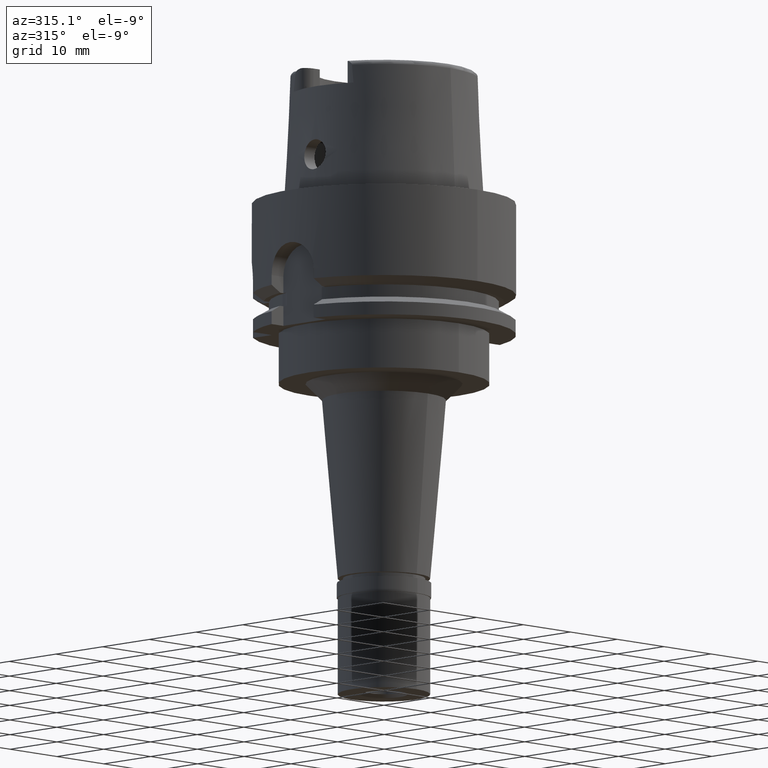
[diagram: clean part render]
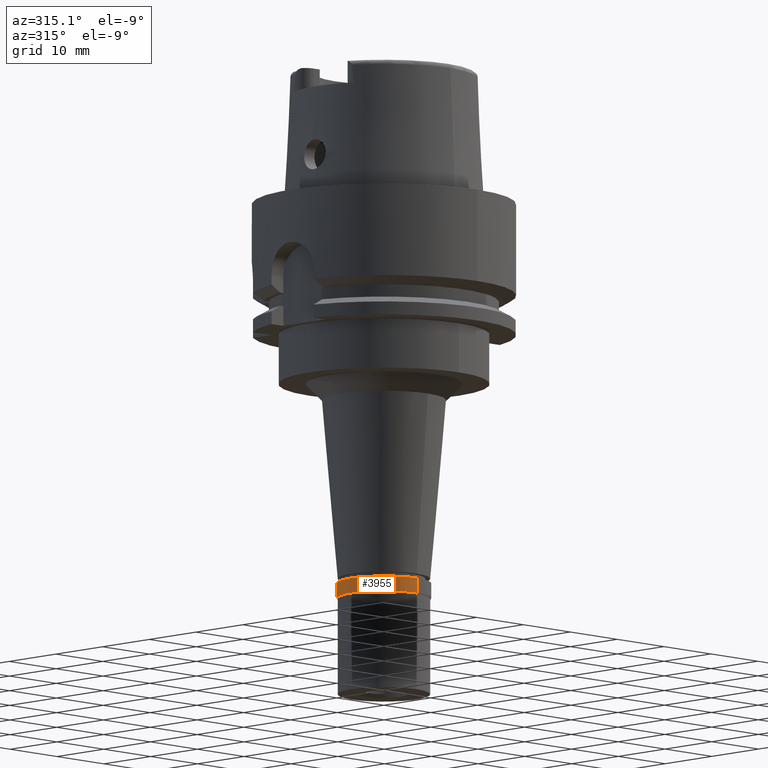
[diagram: same view with one face highlighted and labeled with its STEP entity id]
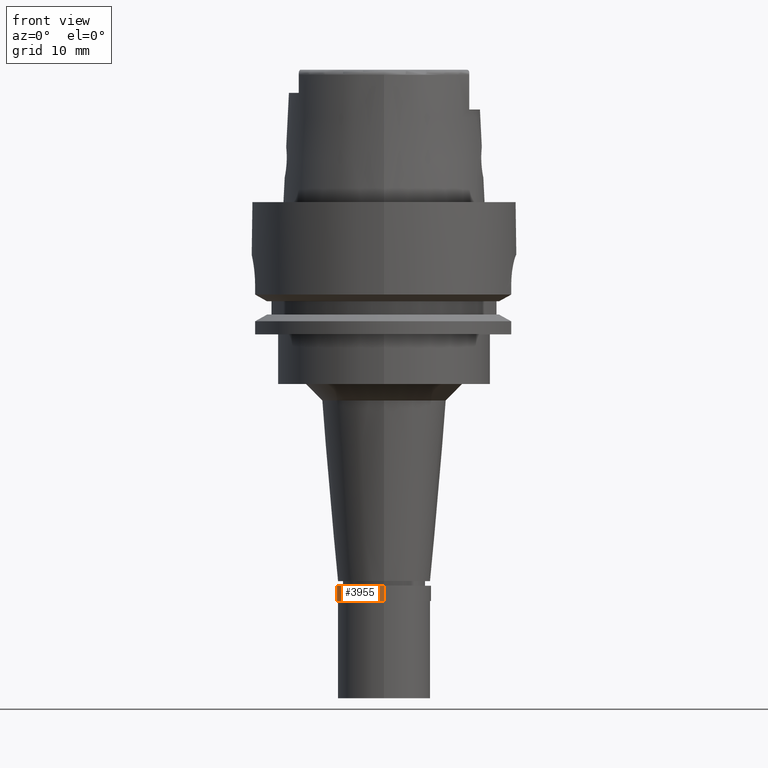
[diagram: same view with one face highlighted and labeled with its STEP entity id]
A machine part, auxiliary view. The second image highlights one B-rep face of the part: STEP entity #3955.
A second angle (front view) of the same face is appended — the face is thin or edge-on in the first view.
In plain terms, the highlighted cylindrical surface (partial cylindrical patch) has radius 7.15 mm, axis along (0, 0, 1).
Its self-contained STEP definition (entity closure, byte-faithful):
#7 = CYLINDRICAL_SURFACE ( 'NONE', #4533, 7.150000000000000355 ) ;
#453 = CIRCLE ( 'NONE', #3441, 7.150000000000000355 ) ;
#528 = EDGE_CURVE ( 'NONE', #2180, #1670, #453, .T. ) ;
#579 = ORIENTED_EDGE ( 'NONE', *, *, #748, .F. ) ;
#618 = ORIENTED_EDGE ( 'NONE', *, *, #528, .T. ) ;
#728 = CARTESIAN_POINT ( 'NONE',  ( 0.0000000000000000000, 7.150000000000000355, 1.776356839399999922E-14 ) ) ;
#748 = EDGE_CURVE ( 'NONE', #2180, #4247, #4462, .T. ) ;
#1182 = DIRECTION ( 'NONE',  ( 0.0000000000000000000, 0.0000000000000000000, -1.000000000000000000 ) ) ;
#1627 = CARTESIAN_POINT ( 'NONE',  ( 0.0000000000000000000, -7.150000000000000355, 0.0000000000000000000 ) ) ;
#1631 = CARTESIAN_POINT ( 'NONE',  ( 0.0000000000000000000, 0.0000000000000000000, -17.85000000000000142 ) ) ;
#1670 = VERTEX_POINT ( 'NONE', #728 ) ;
#1676 = LINE ( 'NONE', #2498, #4749 ) ;
#1716 = ORIENTED_EDGE ( 'NONE', *, *, #2923, .T. ) ;
#2180 = VERTEX_POINT ( 'NONE', #4129 ) ;
#2253 = DIRECTION ( 'NONE',  ( 0.0000000000000000000, 0.0000000000000000000, 1.000000000000000000 ) ) ;
#2498 = CARTESIAN_POINT ( 'NONE',  ( 0.0000000000000000000, 7.150000000000000355, 0.0000000000000000000 ) ) ;
#2923 = EDGE_CURVE ( 'NONE', #1670, #3069, #1676, .T. ) ;
#3011 = VECTOR ( 'NONE', #3765, 1000.000000000000000 ) ;
#3069 = VERTEX_POINT ( 'NONE', #4330 ) ;
#3140 = DIRECTION ( 'NONE',  ( 0.0000000000000000000, -1.000000000000000000, 0.0000000000000000000 ) ) ;
#3188 = CARTESIAN_POINT ( 'NONE',  ( 0.0000000000000000000, 0.0000000000000000000, 1.776356839399999922E-14 ) ) ;
#3379 = EDGE_LOOP ( 'NONE', ( #4204, #579, #618, #1716 ) ) ;
#3441 = AXIS2_PLACEMENT_3D ( 'NONE', #3188, #1182, #3140 ) ;
#3504 = CIRCLE ( 'NONE', #4521, 7.150000000000000355 ) ;
#3543 = DIRECTION ( 'NONE',  ( 0.0000000000000000000, 0.0000000000000000000, -1.000000000000000000 ) ) ;
#3615 = DIRECTION ( 'NONE',  ( 0.0000000000000000000, 1.000000000000000000, 0.0000000000000000000 ) ) ;
#3765 = DIRECTION ( 'NONE',  ( 0.0000000000000000000, 0.0000000000000000000, -1.000000000000000000 ) ) ;
#3839 = CARTESIAN_POINT ( 'NONE',  ( 0.0000000000000000000, 0.0000000000000000000, -2.299999999999999822 ) ) ;
#3955 = ADVANCED_FACE ( 'NONE', ( #4421 ), #7, .T. ) ;
#4129 = CARTESIAN_POINT ( 'NONE',  ( 0.0000000000000000000, -7.150000000000000355, 1.776356839399999922E-14 ) ) ;
#4204 = ORIENTED_EDGE ( 'NONE', *, *, #5250, .T. ) ;
#4247 = VERTEX_POINT ( 'NONE', #5136 ) ;
#4330 = CARTESIAN_POINT ( 'NONE',  ( 0.0000000000000000000, 7.150000000000000355, -2.299999999999999822 ) ) ;
#4421 = FACE_OUTER_BOUND ( 'NONE', #3379, .T. ) ;
#4462 = LINE ( 'NONE', #1627, #3011 ) ;
#4521 = AXIS2_PLACEMENT_3D ( 'NONE', #3839, #2253, #5007 ) ;
#4533 = AXIS2_PLACEMENT_3D ( 'NONE', #1631, #5271, #3615 ) ;
#4749 = VECTOR ( 'NONE', #3543, 1000.000000000000000 ) ;
#5007 = DIRECTION ( 'NONE',  ( 0.0000000000000000000, 1.000000000000000000, 0.0000000000000000000 ) ) ;
#5136 = CARTESIAN_POINT ( 'NONE',  ( 0.0000000000000000000, -7.150000000000000355, -2.299999999999999822 ) ) ;
#5250 = EDGE_CURVE ( 'NONE', #3069, #4247, #3504, .T. ) ;
#5271 = DIRECTION ( 'NONE',  ( 0.0000000000000000000, 0.0000000000000000000, 1.000000000000000000 ) ) ;